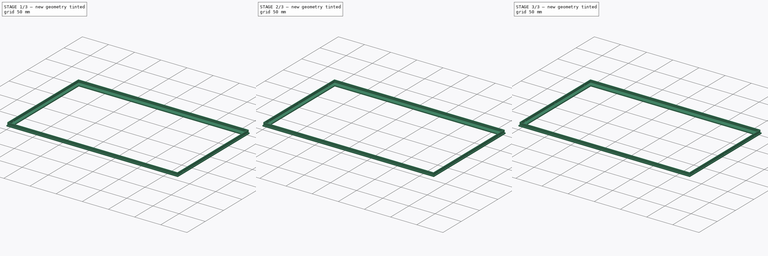
[diagram: build sequence overview — one tinted view per stage of 3, left to right]
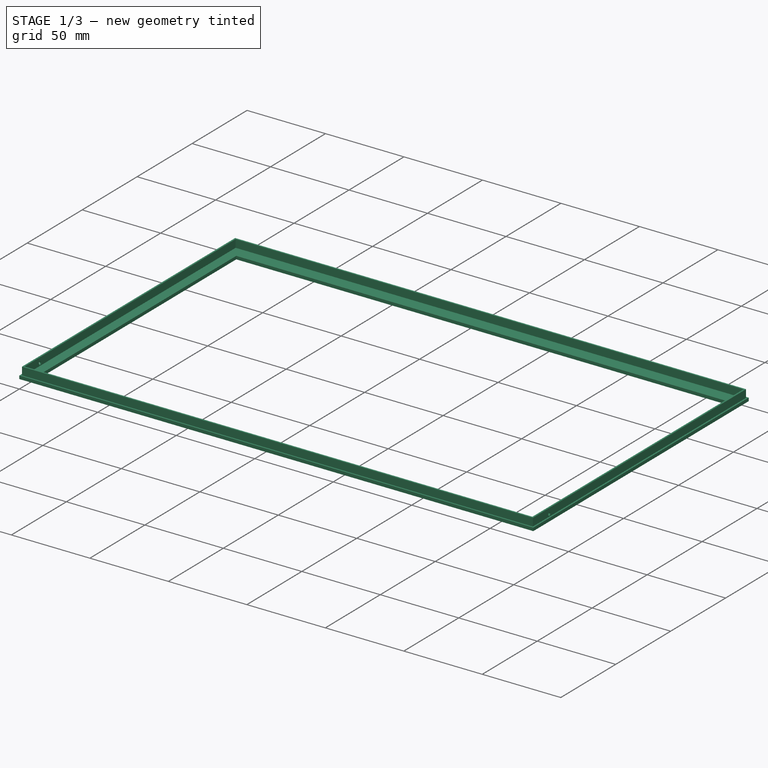
[diagram: stage 1 of 3 — iso view after this stage's code; geometry added in this stage tinted green]
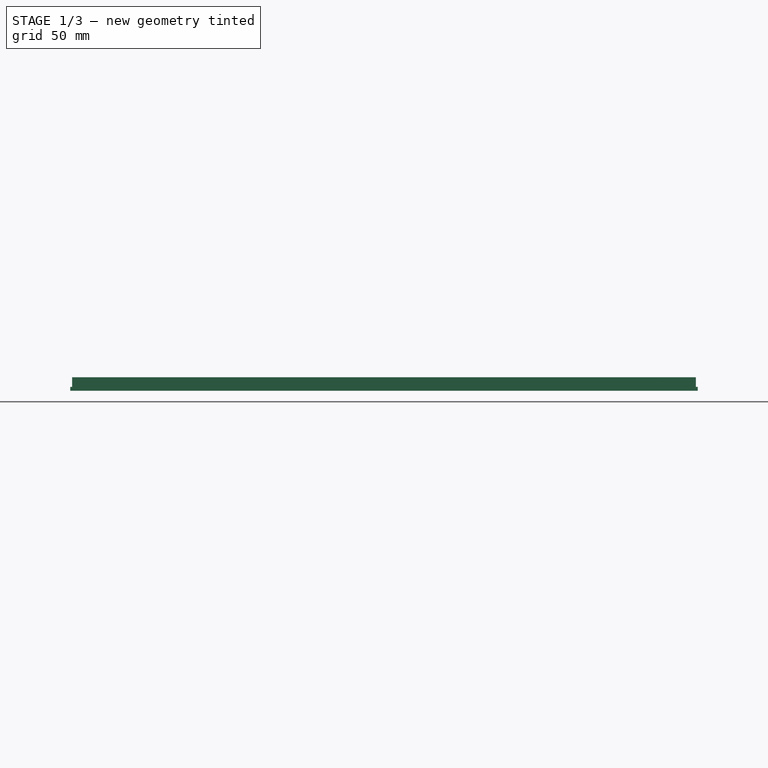
[diagram: stage 1 of 3 — front view after this stage's code; geometry added in this stage tinted green]
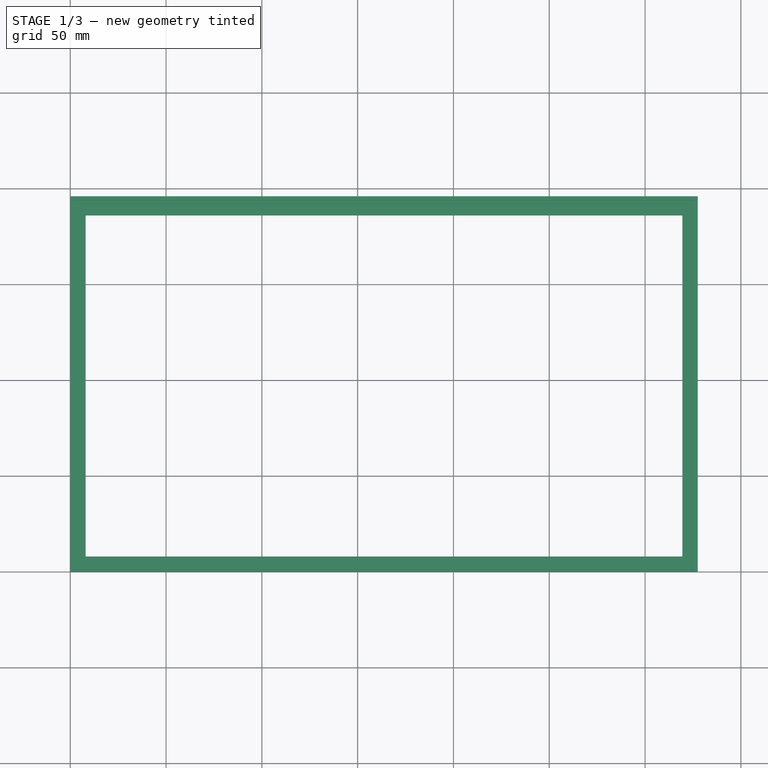
[diagram: stage 1 of 3 — top view after this stage's code; geometry added in this stage tinted green]
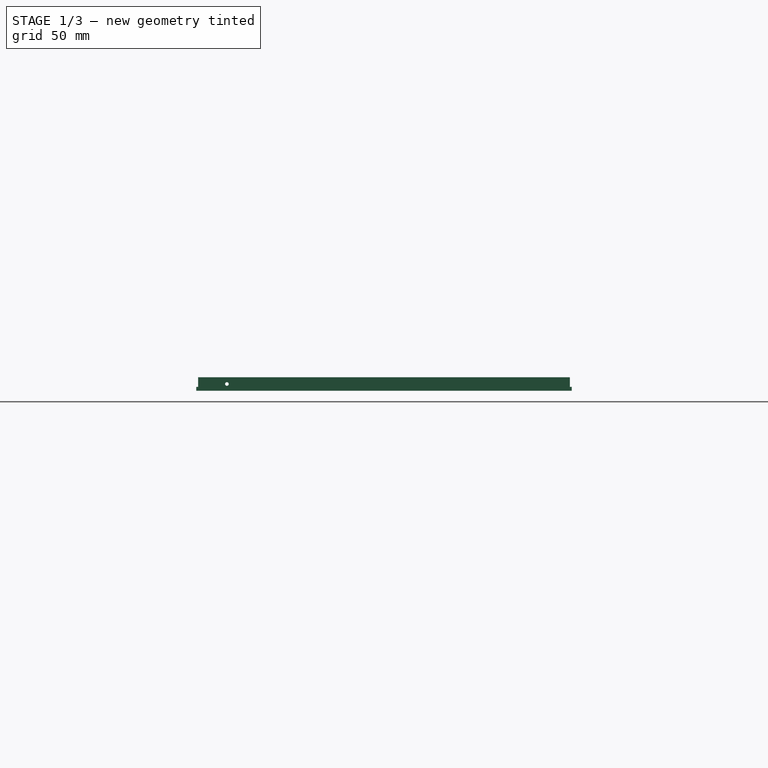
[diagram: stage 1 of 3 — right view after this stage's code; geometry added in this stage tinted green]
FCSTD DOCUMENT  (FreeCAD 0.18.4R)
Label: monitor_cradle_bezel
License: All rights reserved
LicenseURL: http://en.wikipedia.org/wiki/All_rights_reserved
objects: PartDesign::Fillet×4, Sketcher::SketchObject×3, PartDesign::Pad×2, PartDesign::Pocket×1, PartDesign::LinearPattern×1, PartDesign::Body×1
note: 15 computed .brp shape members not serialized (recipe doc carries the construction recipe); baked Part::Feature solids carry a one-line shape summary decoded from their .brp

FEATURE [Sketcher::SketchObject] Sketch
  MapMode = 5
  Support = -> [XY_Plane]
  sketch-geometry (8):
    g0: LineSegment StartX=0 StartY=0 StartZ=0 EndX=327.5 EndY=0 EndZ=0
    g1: LineSegment StartX=327.5 StartY=0 StartZ=0 EndX=327.5 EndY=196 EndZ=0
    g2: LineSegment StartX=327.5 StartY=196 StartZ=0 EndX=0 EndY=196 EndZ=0
    g3: LineSegment StartX=0 StartY=196 StartZ=0 EndX=0 EndY=0 EndZ=0
    g4: LineSegment StartX=8 StartY=8 StartZ=0 EndX=319.5 EndY=8 EndZ=0
    g5: LineSegment StartX=319.5 StartY=8 StartZ=0 EndX=319.5 EndY=186 EndZ=0
    g6: LineSegment StartX=319.5 StartY=186 StartZ=0 EndX=8 EndY=186 EndZ=0
    g7: LineSegment StartX=8 StartY=186 StartZ=0 EndX=8 EndY=8 EndZ=0
  constraints (23):
    c: Coincident(g0,g1)
    c: Coincident(g1,g2)
    c: Coincident(g2,g3)
    c: Coincident(g3,g0)
    c: Horizontal(g0)
    c: Horizontal(g2)
    c: Vertical(g1)
    c: Vertical(g3)
    c: Distance(g2) = 327.5
    c: Distance(g3) = 196
    c: Coincident(g0,g-1)
    c: Coincident(g4,g5)
    c: Coincident(g5,g6)
    c: Coincident(g6,g7)
    c: Coincident(g7,g4)
    c: Horizontal(g4)
    c: Vertical(g5)
    c: Vertical(g7)
    c: Distance(g7) = 178
    c: Equal(g7,g5)
    c: DistanceY(g0,g4) = 8
    c: DistanceX(g0,g4) = 8
    c: DistanceX(g4,g0) = 8
FEATURE [PartDesign::Pad] Pad
  Length = 2
  Length2 = 100
  Profile = -> Sketch
  Type = 0
FEATURE [Sketcher::SketchObject] Sketch002
  MapMode = 5
  Placement = pos=(0,0,2) rot=(0,0,1;0rad)
  Support = -> [Pad]
  sketch-geometry (8):
    g0: LineSegment StartX=2 StartY=2 StartZ=0 EndX=325.5 EndY=2 EndZ=0
    g1: LineSegment StartX=325.5 StartY=2 StartZ=0 EndX=325.5 EndY=194 EndZ=0
    g2: LineSegment StartX=325.5 StartY=194 StartZ=0 EndX=2 EndY=194 EndZ=0
    g3: LineSegment StartX=2 StartY=194 StartZ=0 EndX=2 EndY=2 EndZ=0
    g4: LineSegment StartX=1 StartY=1 StartZ=0 EndX=326.5 EndY=1 EndZ=0
    g5: LineSegment StartX=326.5 StartY=1 StartZ=0 EndX=326.5 EndY=195 EndZ=0
    g6: LineSegment StartX=326.5 StartY=195 StartZ=0 EndX=1 EndY=195 EndZ=0
    g7: LineSegment StartX=1 StartY=195 StartZ=0 EndX=1 EndY=1 EndZ=0
  constraints (24):
    c: Coincident(g0,g1)
    c: Coincident(g1,g2)
    c: Coincident(g2,g3)
    c: Coincident(g3,g0)
    c: Horizontal(g0)
    c: Horizontal(g2)
    c: Vertical(g1)
    c: Vertical(g3)
    c: Distance(g2) = 323.5
    c: Distance(g3) = 192
    c: DistanceX(g-1,g0) = 2
    c: DistanceY(g-1,g0) = 2
    c: Coincident(g4,g5)
    c: Coincident(g5,g6)
    c: Coincident(g6,g7)
    c: Coincident(g7,g4)
    c: Horizontal(g4)
    c: Horizontal(g6)
    c: Vertical(g5)
    c: Vertical(g7)
    c: Distance(g6) = 325.5
    c: Distance(g7) = 194
    c: DistanceY(g-1,g4) = 1
    c: DistanceX(g4,g-1) = -1
FEATURE [PartDesign::Pad] Pad001
  BaseFeature = -> Pad
  Length = 5
  Length2 = 100
  Profile = -> Sketch002
  Type = 0
FEATURE [Sketcher::SketchObject] Sketch005
  MapMode = 5
  Placement = pos=(326.5,0,0) rot=(0.57735,0.57735,0.57735;2.0944rad)
  Support = -> [Pad001]
  sketch-geometry (1):
    g0: Circle CenterX=16 CenterY=3.5 CenterZ=0 NormalX=0 NormalY=0 NormalZ=1 AngleXU=0 Radius=0.95
  constraints (3):
    c: Radius(g0) = 0.95
    c: DistanceX(g-1,g0) = 16
    c: DistanceY(g-1,g0) = 3.5
FEATURE [PartDesign::Pocket] Pocket
  BaseFeature = -> Pad001
  Length = 5
  Length2 = 100
  Profile = -> Sketch005
  Type = 1
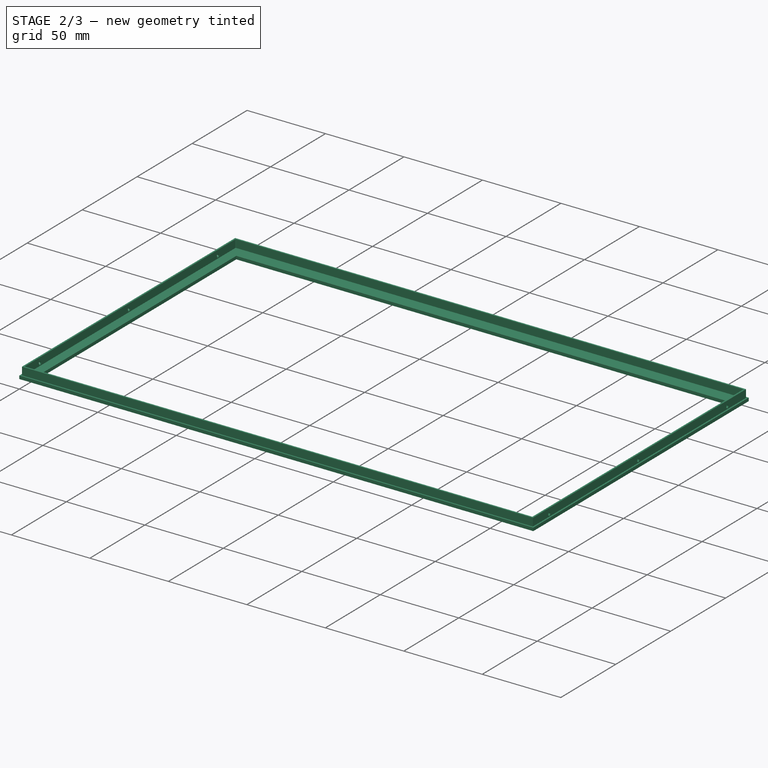
[diagram: stage 2 of 3 — iso view after this stage's code; geometry added in this stage tinted green]
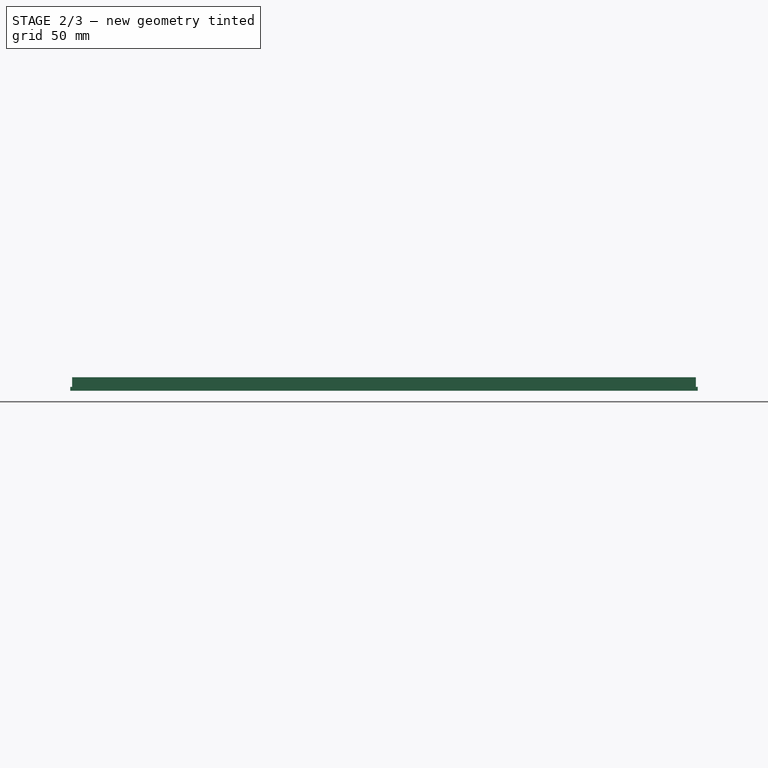
[diagram: stage 2 of 3 — front view after this stage's code; geometry added in this stage tinted green]
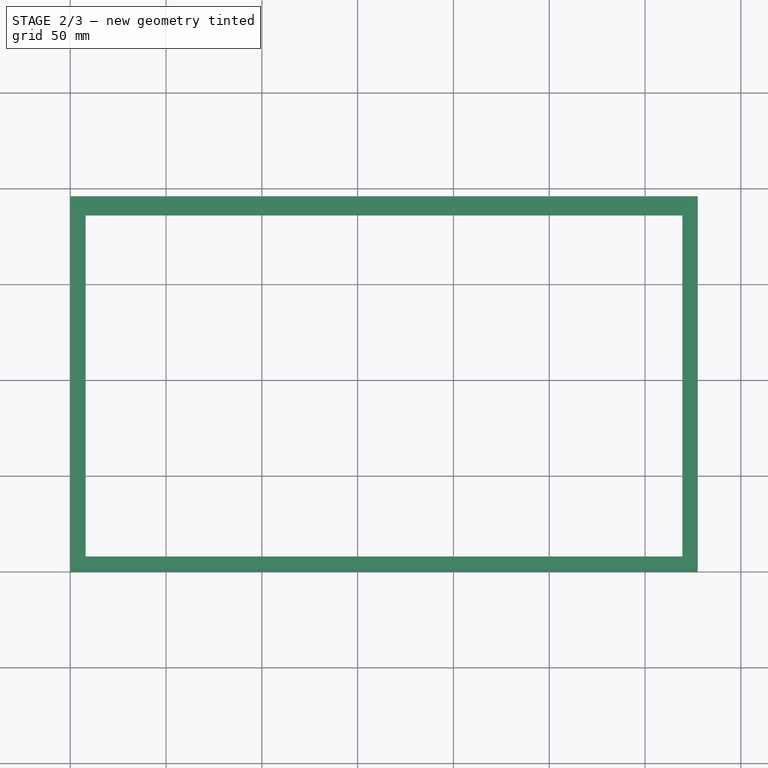
[diagram: stage 2 of 3 — top view after this stage's code; geometry added in this stage tinted green]
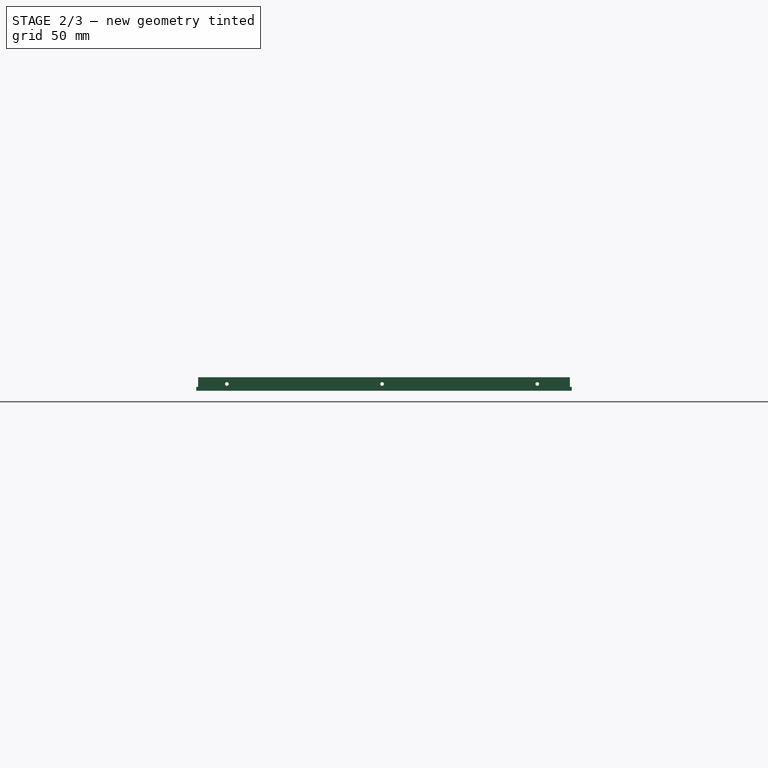
[diagram: stage 2 of 3 — right view after this stage's code; geometry added in this stage tinted green]
FEATURE [PartDesign::LinearPattern] LinearPattern
  BaseFeature = -> Pocket
  Direction = -> Sketch005 [H_Axis]
  Length = 162
  Occurrences = 3
  Originals = -> [Pocket]
FEATURE [PartDesign::Fillet] Fillet
  Base = -> LinearPattern [Edge64,Edge66,Edge65,Edge63]
  BaseFeature = -> LinearPattern
  Radius = 0.25
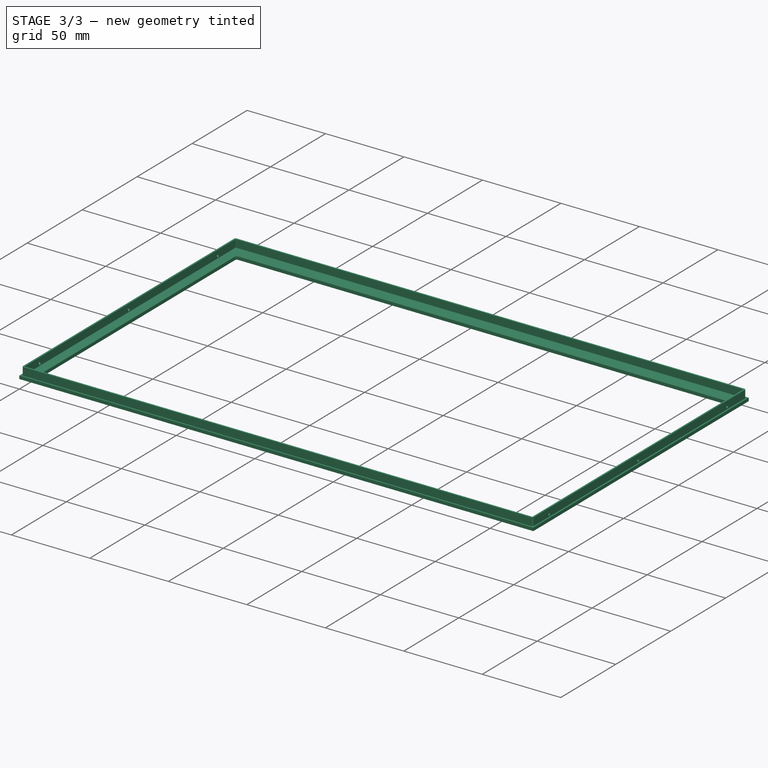
[diagram: stage 3 of 3 — iso view after this stage's code; geometry added in this stage tinted green]
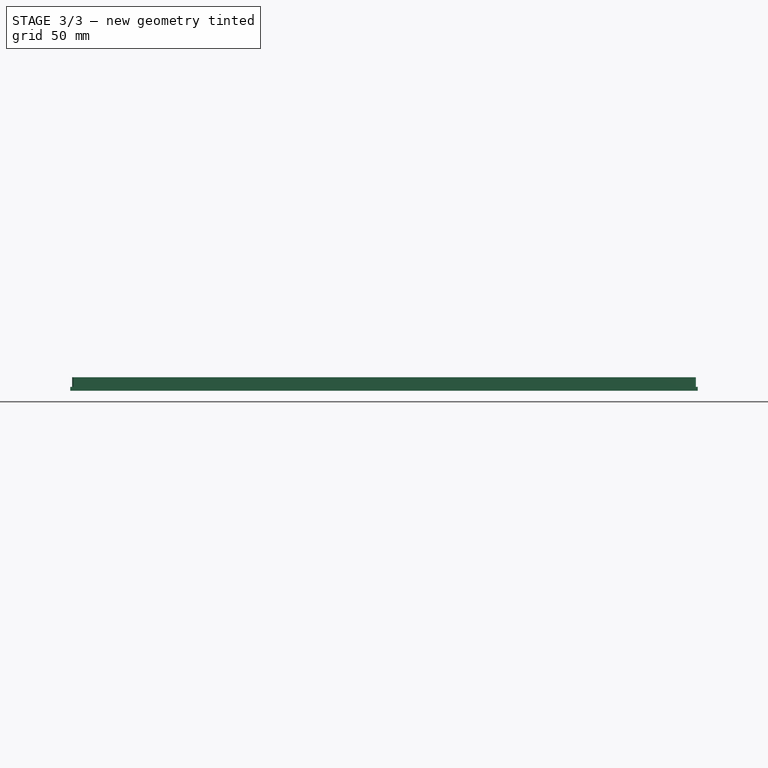
[diagram: stage 3 of 3 — front view after this stage's code; geometry added in this stage tinted green]
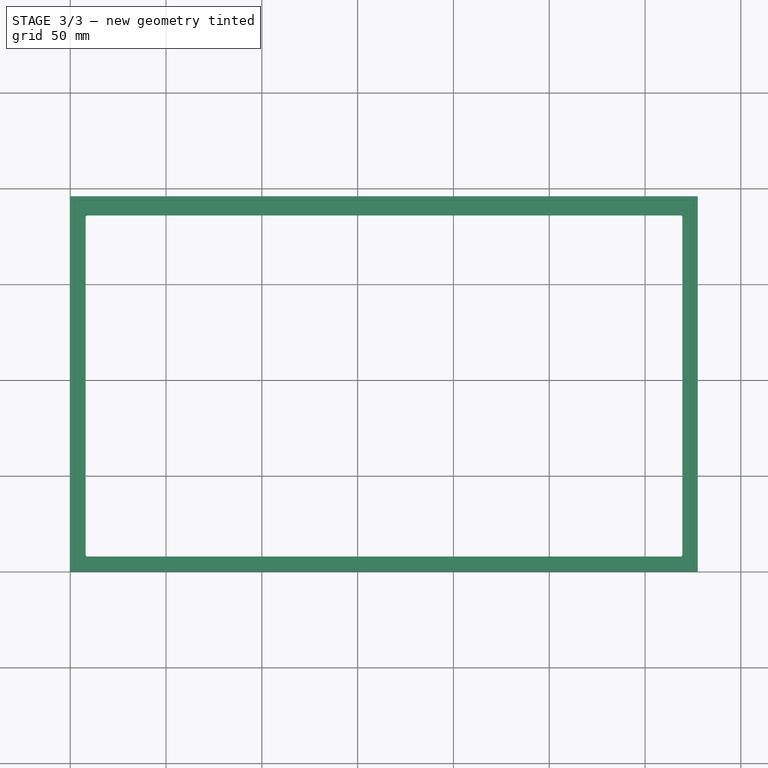
[diagram: stage 3 of 3 — top view after this stage's code; geometry added in this stage tinted green]
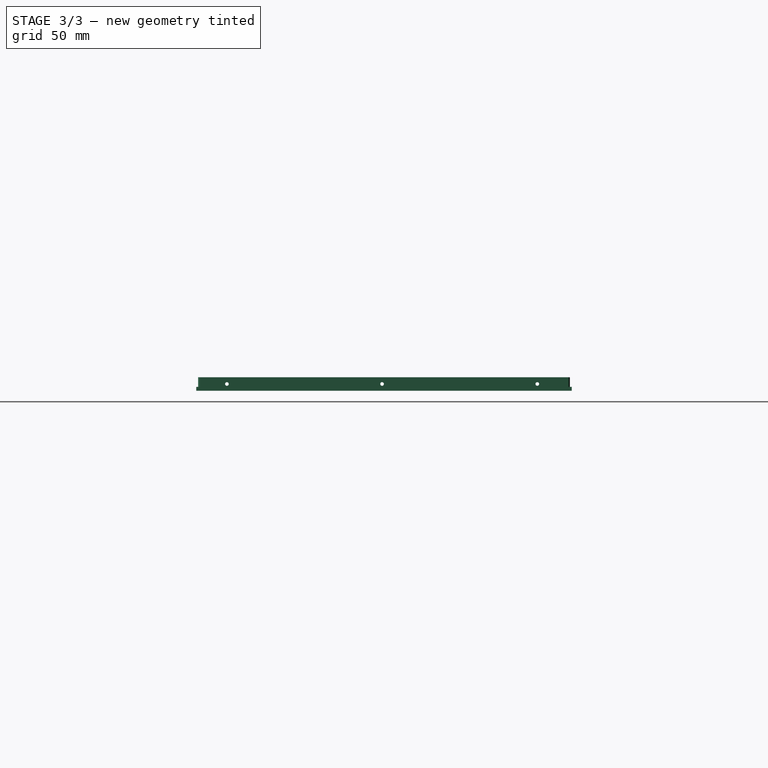
[diagram: stage 3 of 3 — right view after this stage's code; geometry added in this stage tinted green]
FEATURE [PartDesign::Fillet] Fillet001
  Base = -> Fillet [Edge38,Edge40,Edge35,Edge36]
  BaseFeature = -> Fillet
  Radius = 1
FEATURE [PartDesign::Fillet] Fillet002
  Base = -> Fillet001 [Edge16,Edge12,Edge9,Edge13,Edge11,Edge15,Edge14,Edge10]
  BaseFeature = -> Fillet001
  Radius = 0.25
FEATURE [PartDesign::Fillet] Fillet003
  Base = -> Fillet002 [Edge100,Edge103,Edge99,Edge104]
  BaseFeature = -> Fillet002
  Radius = 1
FEATURE [PartDesign::Body] Body
  Group = -> [Sketch,Pad,Sketch002,Pad001,Sketch005,Pocket,LinearPattern,Fillet,Fillet001,Fillet002,Fillet003]
  Origin = -> Origin
  Tip = -> Fillet003
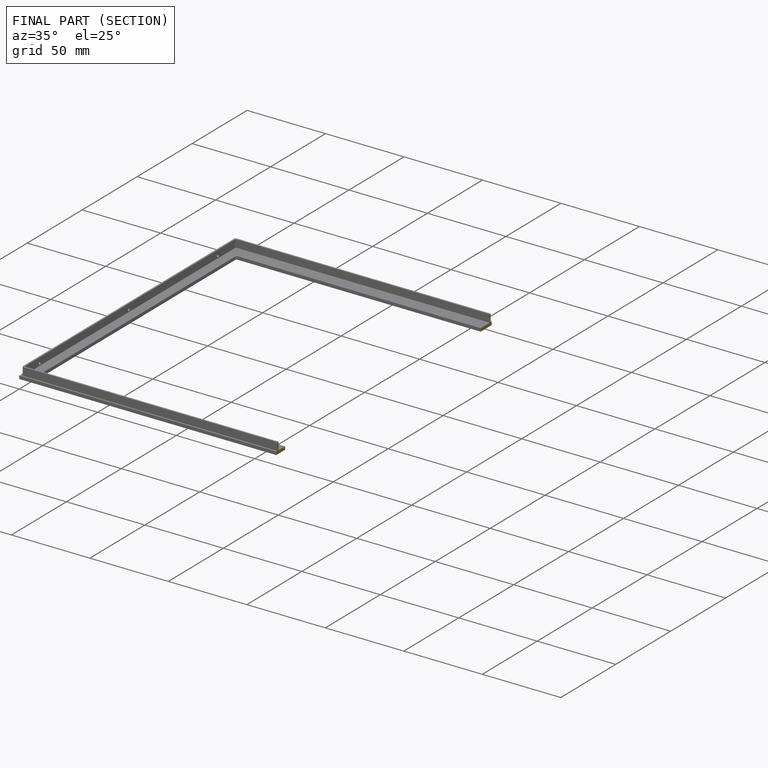
[diagram: finished part — half-section view (interior)]
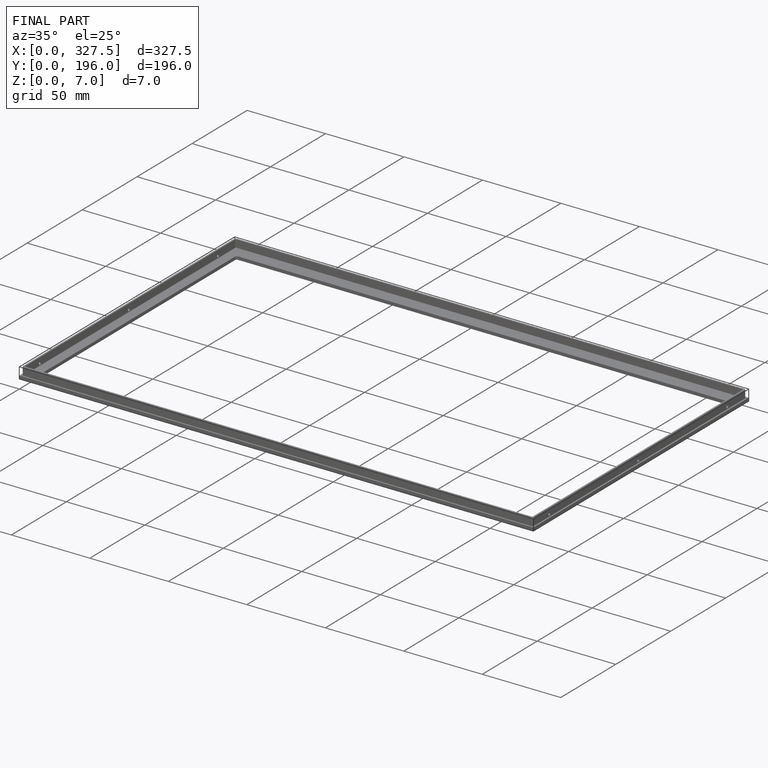
[diagram: finished part — iso view with bounding-box wireframe]
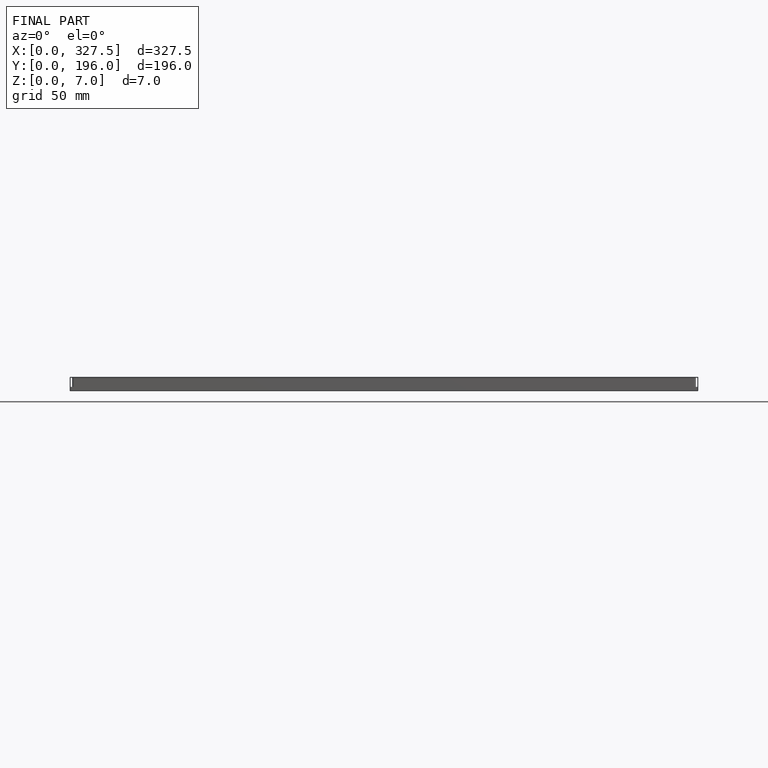
[diagram: finished part — front view with bounding-box wireframe]
